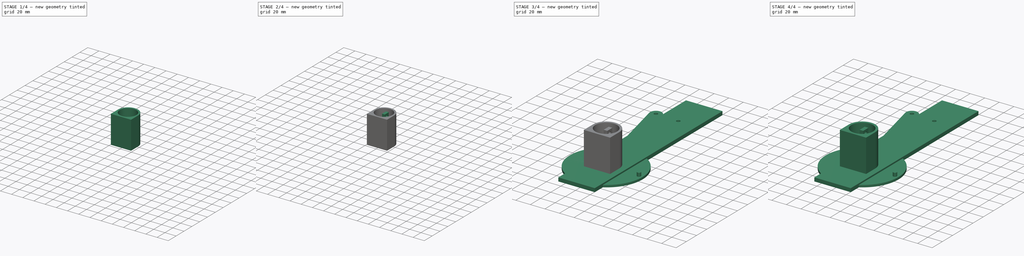
[diagram: build sequence overview — one tinted view per stage of 4, left to right]
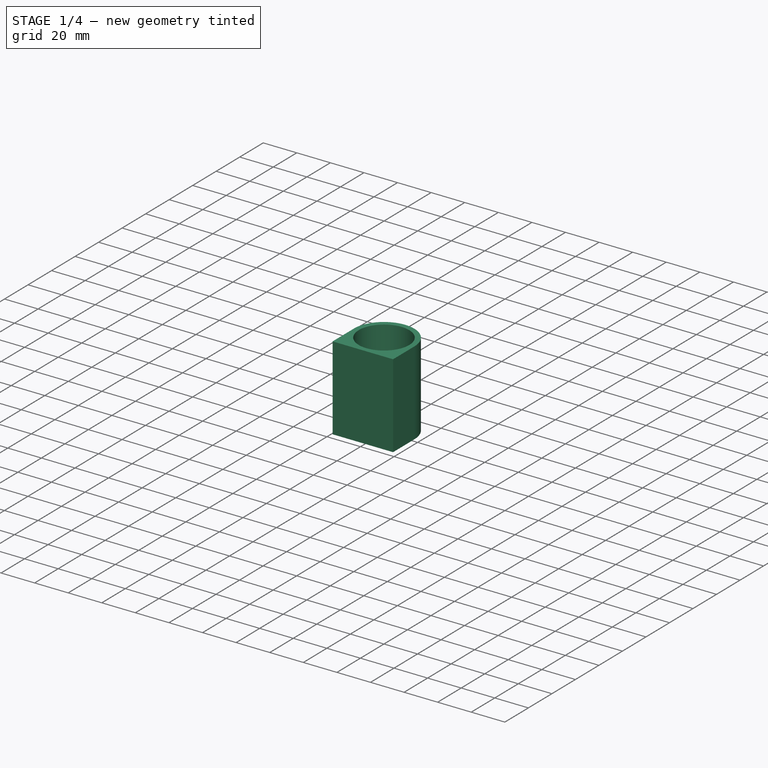
[diagram: stage 1 of 4 — iso view after this stage's code; geometry added in this stage tinted green]
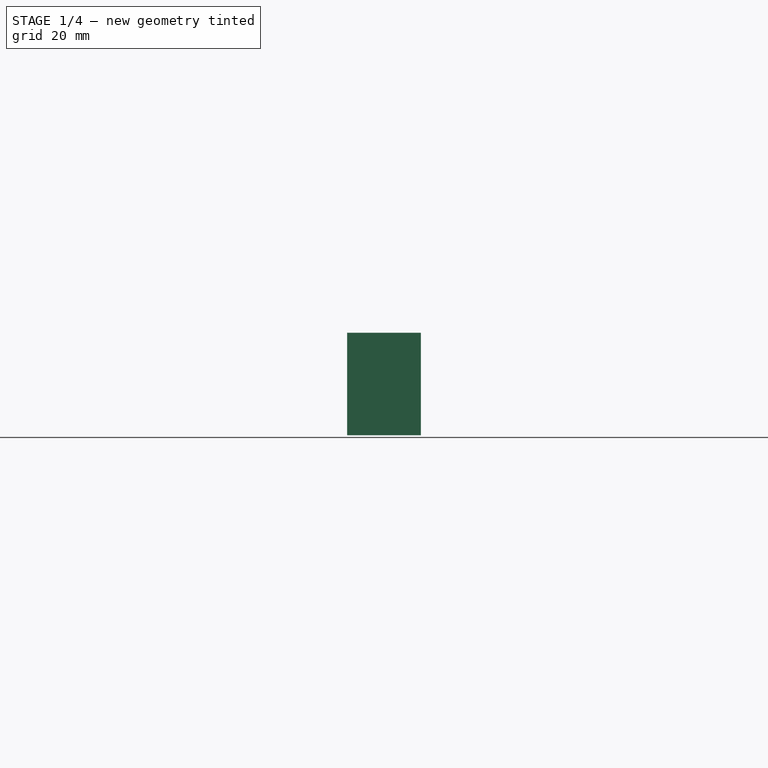
[diagram: stage 1 of 4 — front view after this stage's code; geometry added in this stage tinted green]
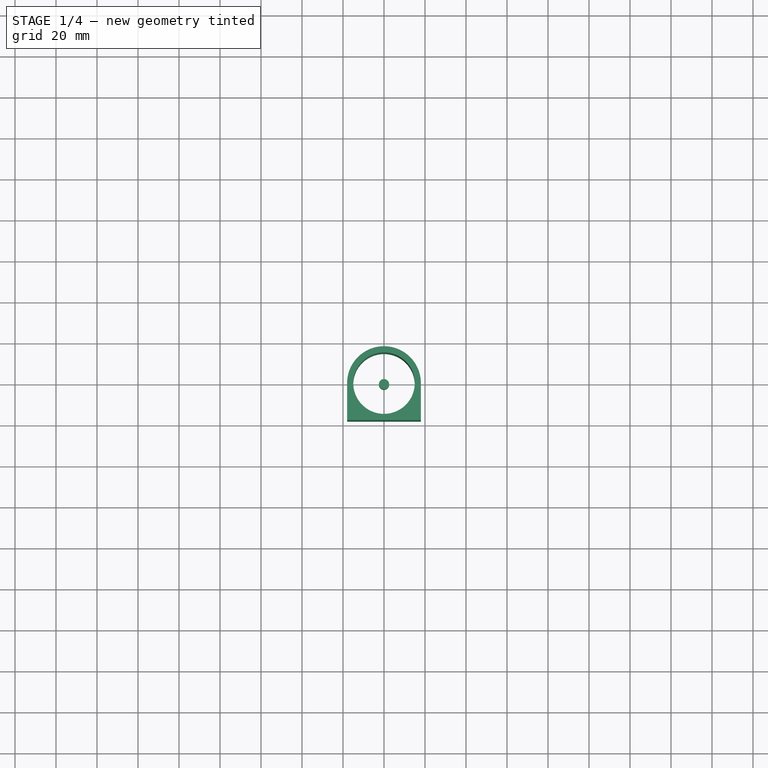
[diagram: stage 1 of 4 — top view after this stage's code; geometry added in this stage tinted green]
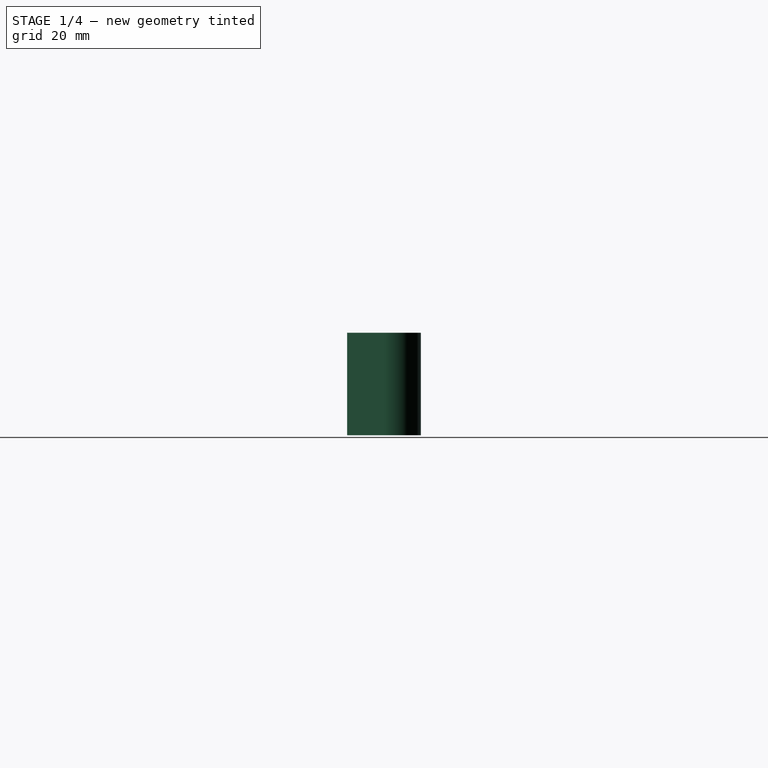
[diagram: stage 1 of 4 — right view after this stage's code; geometry added in this stage tinted green]
FCSTD DOCUMENT  (FreeCAD 0.19R24276 (Git))
Label: Ass_12
License: All rights reserved
LicenseURL: http://en.wikipedia.org/wiki/All_rights_reserved
objects: PartDesign::CoordinateSystem×15, Sketcher::SketchObject×14, PartDesign::Pad×12, PartDesign::Body×9, App::Link×7, App::DocumentObjectGroup×3, App::FeaturePython×1, PartDesign::Pocket×1, App::Part×1
note: 64 computed .brp shape members not serialized (recipe doc carries the construction recipe); baked Part::Feature solids carry a one-line shape summary decoded from their .brp

FEATURE [PartDesign::CoordinateSystem] LCS_Piston_1
  AttacherType = Attacher::AttachEngine3D
  MapMode = 11
  Placement = pos=(0,0,45) rot=(0.707107,0,0.707107;3.14159rad)
  Support = -> [Pocket]
FEATURE [PartDesign::Body] Body002  label="Body_piston"
  Group = -> [Sketch003,Pad003,Sketch004,Pad004,Sketch005,Pocket,LCS_Piston_1]
  Origin = -> Origin003
  Tip = -> Pocket
FEATURE [Sketcher::SketchObject] Sketch006
  FullyConstrained = true
  MapMode = 5
  Support = -> [XY_Plane004]
  sketch-geometry (1):
    g0: Circle CenterX=0 CenterY=0 CenterZ=0 NormalX=0 NormalY=0 NormalZ=1 AngleXU=0 Radius=2.5
  constraints (2):
    c: Coincident(g0,g-1)
    c: Diameter(g0) = 5
FEATURE [PartDesign::Pad] Pad005
  Direction = (1,1,1)
  Length = 10
  Length2 = 100
  Profile = -> Sketch006
  Type = 0
FEATURE [PartDesign::CoordinateSystem] LCS_Shtift_5x10_Center
  AttacherType = Attacher::AttachEngine3D
  MapMode = 11
  Placement = pos=(0,0,10) rot=(0,0,1;1.5708rad)
  Support = -> [Pad007]
FEATURE [PartDesign::Body] Body005  label="Body_Shtift_5x10"
  Group = -> [Sketch008,Pad007,LCS_Shtift_5x10_Center]
  Origin = -> Origin006
  Tip = -> Pad007
FEATURE [Sketcher::SketchObject] Sketch009
  FullyConstrained = false
  MapMode = 5
  Support = -> [XY_Plane007]
  sketch-geometry (5):
    g0: ArcOfCircle CenterX=0 CenterY=0 CenterZ=0 NormalX=0 NormalY=0 NormalZ=1 AngleXU=0 Radius=18 StartAngle=0 EndAngle=3.14159
    g1: Circle CenterX=0 CenterY=0 CenterZ=0 NormalX=0 NormalY=0 NormalZ=1 AngleXU=0 Radius=15
    g2: LineSegment StartX=18 StartY=0 StartZ=0 EndX=18 EndY=-18 EndZ=0
    g3: LineSegment StartX=18 StartY=-18 StartZ=0 EndX=-18 EndY=-18 EndZ=0
    g4: LineSegment StartX=-18 StartY=-18 StartZ=0 EndX=-18 EndY=0 EndZ=0
  constraints (9):
    c: Coincident(g0,g-1)
    c: Coincident(g1,g0)
    c: Diameter(g1) = 30
    c: Diameter(g0) = 36
    c: Coincident(g2,g3)
    c: Coincident(g3,g4)
    c: Horizontal(g3)
    c: Vertical(g2)
    c: Vertical(g4)
FEATURE [PartDesign::Pad] Pad008
  Direction = (1,1,1)
  Length = 50
  Length2 = 100
  Profile = -> Sketch009
  Type = 0
FEATURE [PartDesign::CoordinateSystem] LCS_osnov_W
  AttacherType = Attacher::AttachEngine3D
  MapMode = 11
  Placement = pos=(0,141.24,5) rot=(0,0,1;1.5708rad)
  Support = -> [Pad009]
FEATURE [PartDesign::Body] Body007  label="Body_osnovanie"
  Group = -> [Sketch010,Pad009,LCS_osnov_W]
  Origin = -> Origin008
  Tip = -> Pad009
FEATURE [App::Link] Body_osnovanie  label="Body_osnovanie001"
  AttachedBy = #LCS_osnov_W
  AttachedTo = Parent Assembly#LCS_Origin
  AttachmentOffset = pos=(0,0,-15) rot=(0,0,1;0rad)
  LinkPlacement = pos=(-141.24,0,-20) rot=(0,0,-1;1.5708rad)
  LinkedObject = -> Body007
  Placement = pos=(-141.24,0,-20) rot=(0,0,-1;1.5708rad)
  SolverId = Placement::ExpressionEngine
  expr: Placement = LCS_Origin.Placement * AttachmentOffset * LCS_osnov_W.Placement ^ -1
FEATURE [Sketcher::SketchObject] Sketch011
  FullyConstrained = true
  MapMode = 5
  Support = -> [XY_Plane009]
  sketch-geometry (1):
    g0: Circle CenterX=0 CenterY=0 CenterZ=0 NormalX=0 NormalY=0 NormalZ=1 AngleXU=0 Radius=2.5
  constraints (2):
    c: Coincident(g0,g-1)
    c: Diameter(g0) = 5
FEATURE [PartDesign::Pad] Pad010
  Direction = (1,1,1)
  Length = 20
  Length2 = 100
  Profile = -> Sketch011
  Type = 0
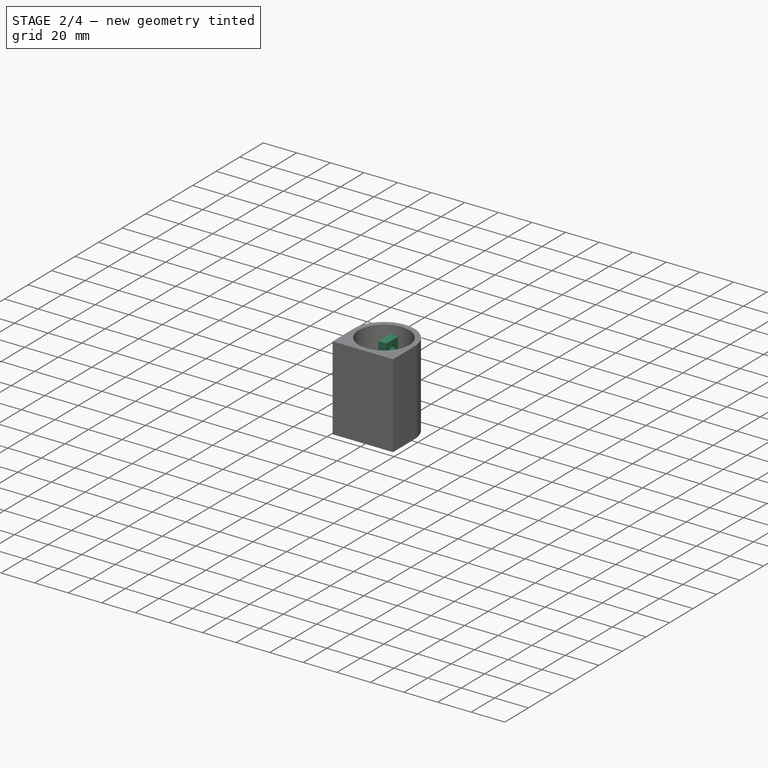
[diagram: stage 2 of 4 — iso view after this stage's code; geometry added in this stage tinted green]
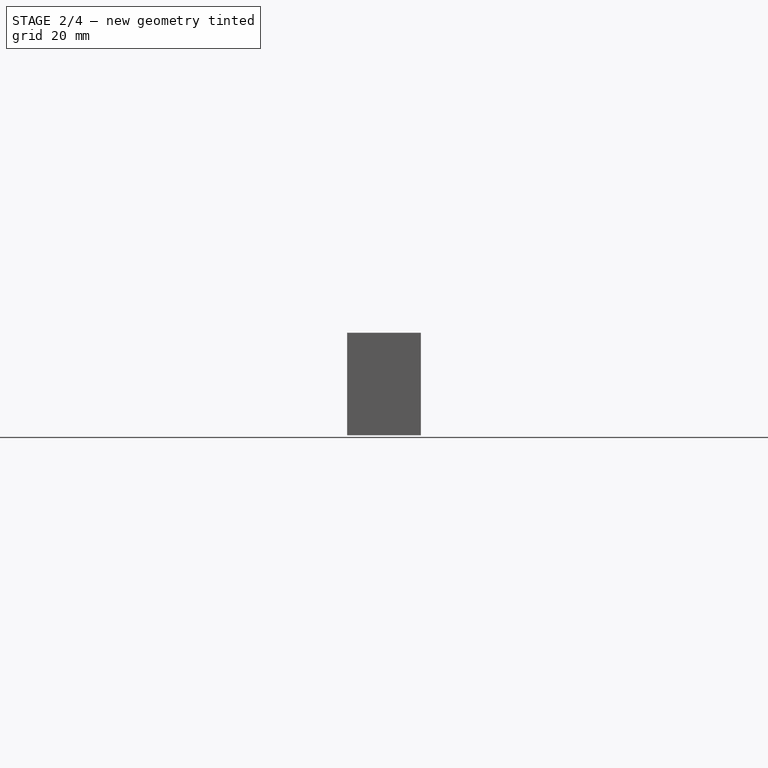
[diagram: stage 2 of 4 — front view after this stage's code; geometry added in this stage tinted green]
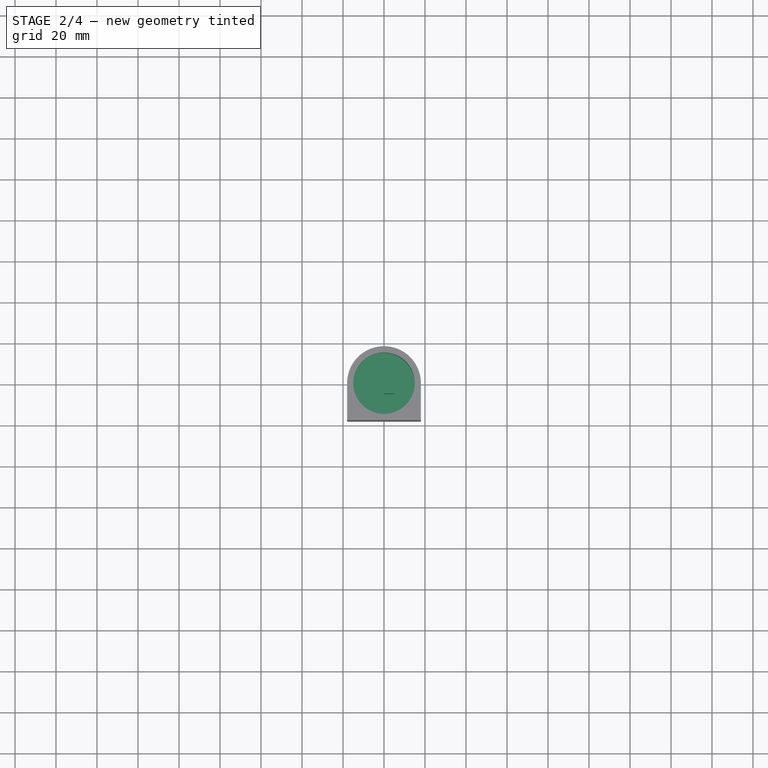
[diagram: stage 2 of 4 — top view after this stage's code; geometry added in this stage tinted green]
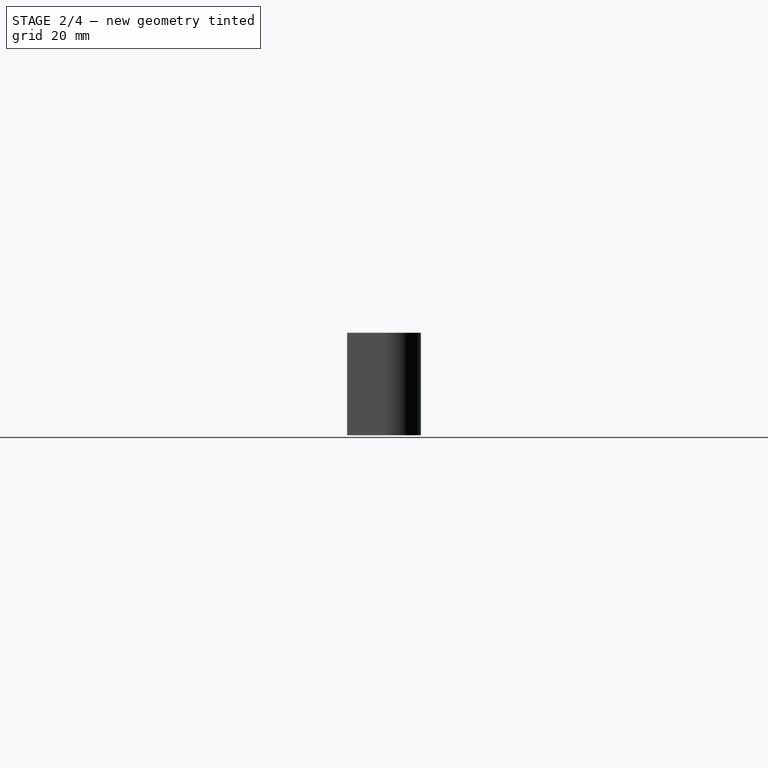
[diagram: stage 2 of 4 — right view after this stage's code; geometry added in this stage tinted green]
FEATURE [Sketcher::SketchObject] Master_Sketch
  FullyConstrained = true
  expr: Constraints[9] = Variables.rot - 90
  sketch-geometry (5):
    g0: Circle CenterX=-106.08 CenterY=0 CenterZ=0 NormalX=0 NormalY=0 NormalZ=1 AngleXU=0 Radius=1
    g1: LineSegment StartX=0 StartY=0 StartZ=0 EndX=43.4667 EndY=-11.6469 EndZ=0
    g2: LineSegment StartX=43.4667 StartY=-11.6469 StartZ=0 EndX=-106.08 EndY=0 EndZ=0
    g3: Circle CenterX=43.4667 CenterY=-11.6469 CenterZ=0 NormalX=0 NormalY=0 NormalZ=1 AngleXU=0 Radius=1
    g4: LineSegment StartX=-106.08 StartY=0 StartZ=0 EndX=-151.08 EndY=0 EndZ=0
  constraints (13):
    c: PointOnObject(g0,g-1)
    c: Diameter(g0) = 2
    c: Coincident(g1,g-1)
    c: Coincident(g2,g1)
    c: Coincident(g2,g0)
    c: Distance(g1) = 45
    c: Distance(g2) = 150
    c: Coincident(g3,g1)
    c: Diameter(g3) = 2
    c: Angle(g-1,g1) = -0.261799
    c: Coincident(g4,g0)
    c: Horizontal(g4)
    c: DistanceX(g4,g0) = 45
FEATURE [App::DocumentObjectGroup] Constraints
  Group = -> [Master_Sketch]
FEATURE [PartDesign::CoordinateSystem] LCS_Blin_Center
  AttacherType = Attacher::AttachEngine3D
  MapMode = 11
  Placement = pos=(0,0,3) rot=(0,0,1;1.5708rad)
  Support = -> [Pad001]
FEATURE [PartDesign::Body] Body  label="Body_blin_2"
  Group = -> [Sketch,Pad,Sketch001,Pad001,LCS_Blin_Center]
  Origin = -> Origin001
  Tip = -> Pad001
FEATURE [Sketcher::SketchObject] Sketch003
  FullyConstrained = true
  MapMode = 5
  Support = -> [XY_Plane003]
  sketch-geometry (1):
    g0: Circle CenterX=0 CenterY=0 CenterZ=0 NormalX=0 NormalY=0 NormalZ=1 AngleXU=0 Radius=15
  constraints (2):
    c: Coincident(g0,g-1)
    c: Diameter(g0) = 30
FEATURE [PartDesign::Pad] Pad003
  Direction = (1,1,1)
  Length = 30
  Length2 = 100
  Profile = -> Sketch003
  Type = 0
FEATURE [Sketcher::SketchObject] Sketch004
  FullyConstrained = true
  MapMode = 5
  Placement = pos=(0,0,30) rot=(0,0,1;0rad)
  Support = -> [Pad003]
  sketch-geometry (4):
    g0: LineSegment StartX=0 StartY=5 StartZ=0 EndX=5 EndY=5 EndZ=0
    g1: LineSegment StartX=5 StartY=5 StartZ=0 EndX=5 EndY=-5 EndZ=0
    g2: LineSegment StartX=5 StartY=-5 StartZ=0 EndX=0 EndY=-5 EndZ=0
    g3: LineSegment StartX=0 StartY=-5 StartZ=0 EndX=0 EndY=5 EndZ=0
  constraints (11):
    c: Coincident(g0,g1)
    c: Coincident(g1,g2)
    c: Coincident(g2,g3)
    c: Coincident(g3,g0)
    c: Horizontal(g0)
    c: Horizontal(g2)
    c: Vertical(g1)
    c: Vertical(g3)
    c: Symmetric(g2,g0,g-1)
    c: DistanceX(g0,g0) = 5
    c: DistanceY(g1,g1) = 10
FEATURE [PartDesign::Pad] Pad004
  BaseFeature = -> Pad003
  Direction = (1,1,1)
  Length = 20
  Length2 = 100
  Profile = -> Sketch004
  Type = 0
FEATURE [Sketcher::SketchObject] Sketch005
  FullyConstrained = true
  MapMode = 5
  Placement = pos=(5,0,0) rot=(0.57735,0.57735,0.57735;2.0944rad)
  Support = -> [Pad004]
  sketch-geometry (1):
    g0: Circle CenterX=0 CenterY=45 CenterZ=0 NormalX=0 NormalY=0 NormalZ=1 AngleXU=0 Radius=2.5
  constraints (3):
    c: PointOnObject(g0,g-2)
    c: Diameter(g0) = 5
    c: DistanceY(g-1,g0) = 45
FEATURE [PartDesign::Pocket] Pocket
  BaseFeature = -> Pad004
  Length = 5
  Length2 = 100
  Profile = -> Sketch005
  Type = 1
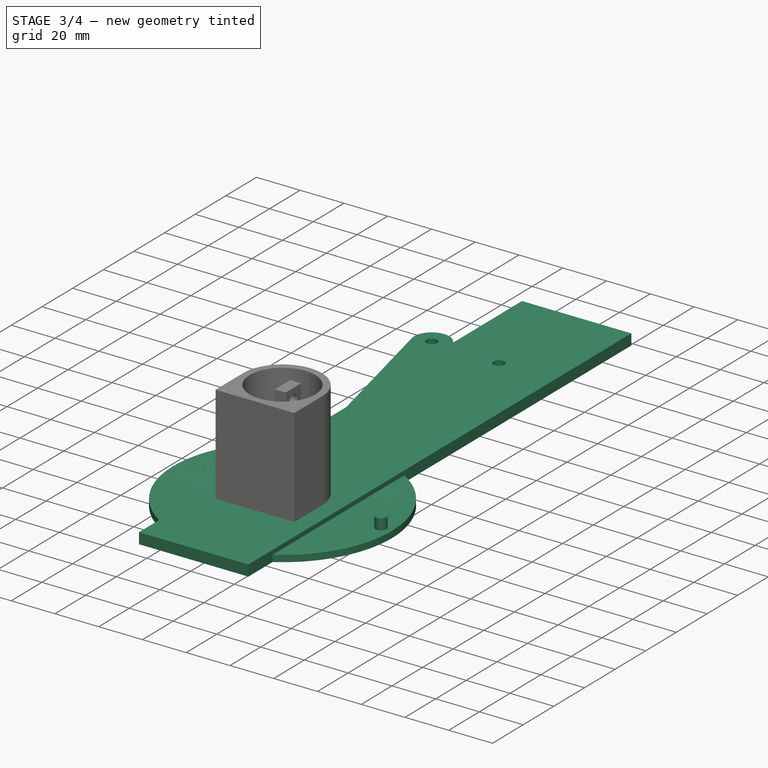
[diagram: stage 3 of 4 — iso view after this stage's code; geometry added in this stage tinted green]
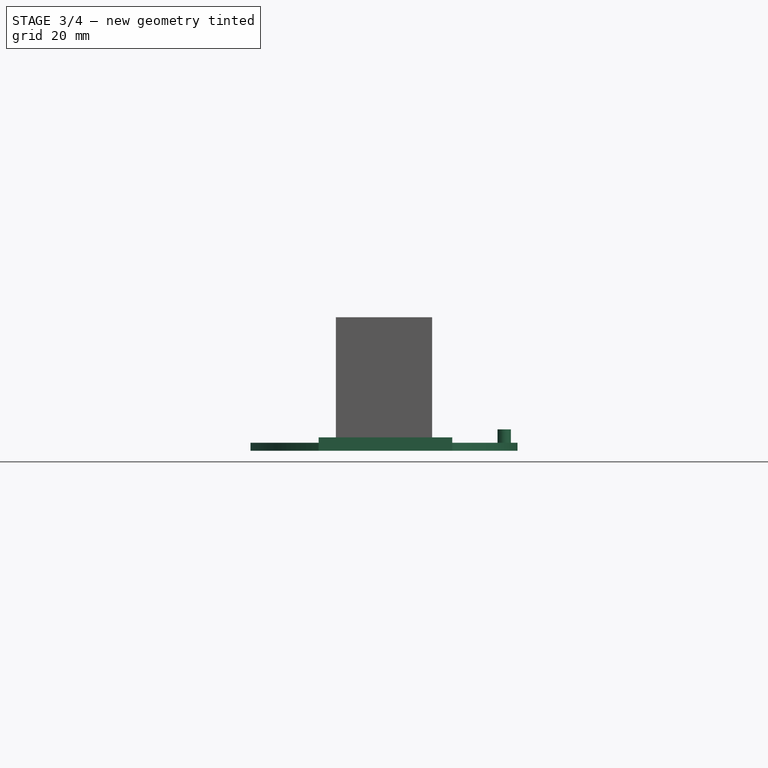
[diagram: stage 3 of 4 — front view after this stage's code; geometry added in this stage tinted green]
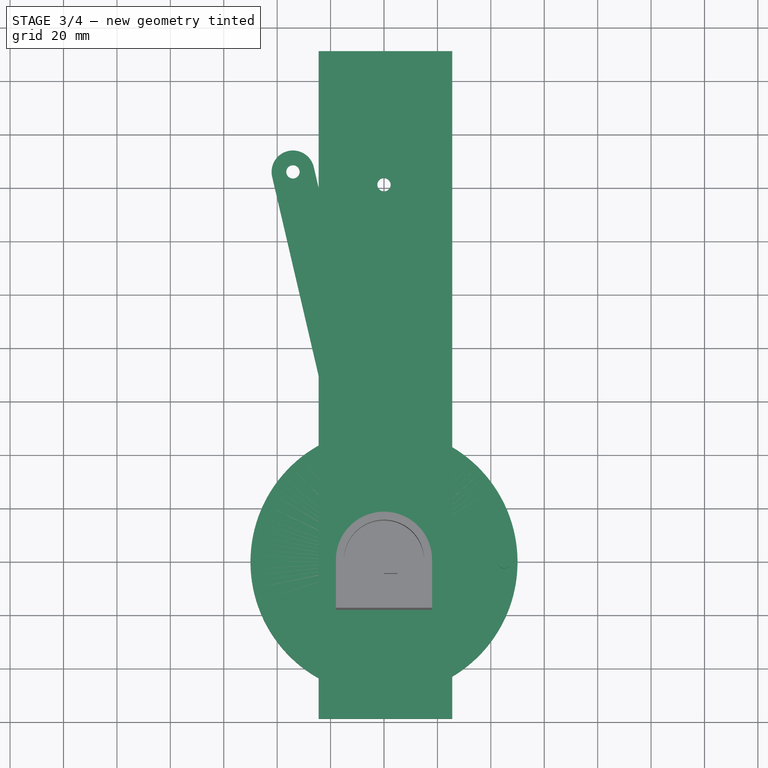
[diagram: stage 3 of 4 — top view after this stage's code; geometry added in this stage tinted green]
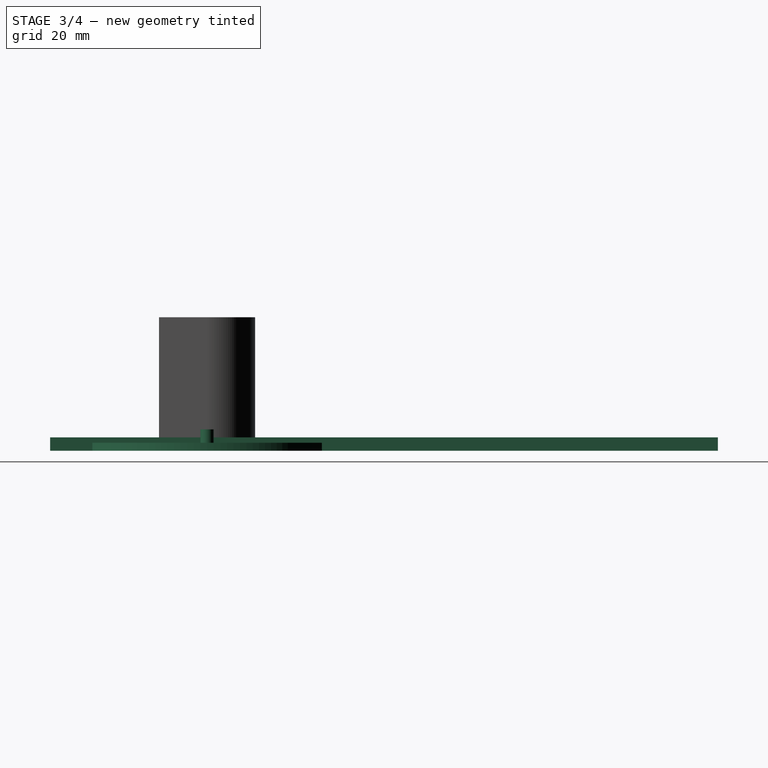
[diagram: stage 3 of 4 — right view after this stage's code; geometry added in this stage tinted green]
FEATURE [PartDesign::CoordinateSystem] LCS_Cilinder_center
  AttacherType = Attacher::AttachEngine3D
  MapMode = 11
  Placement = pos=(0,0,50) rot=(0,0,1;1.5708rad)
  Support = -> [Pad008]
FEATURE [PartDesign::Body] Body006  label="Body_cilinder_Sq"
  Group = -> [Sketch009,Pad008,LCS_Cilinder_center]
  Origin = -> Origin007
  Tip = -> Pad008
FEATURE [Sketcher::SketchObject] Sketch010
  FullyConstrained = false
  MapMode = 5
  Support = -> [XY_Plane008]
  sketch-geometry (5):
    g0: LineSegment StartX=25.5407 StartY=-58.7601 StartZ=0 EndX=-24.4593 EndY=-58.7601 EndZ=0
    g1: LineSegment StartX=-24.4593 StartY=-58.7601 StartZ=0 EndX=-24.4593 EndY=191.24 EndZ=0
    g2: LineSegment StartX=-24.4593 StartY=191.24 StartZ=0 EndX=25.5407 EndY=191.24 EndZ=0
    g3: LineSegment StartX=25.5407 StartY=191.24 StartZ=0 EndX=25.5407 EndY=-58.7601 EndZ=0
    g4: Circle CenterX=0 CenterY=141.24 CenterZ=0 NormalX=0 NormalY=0 NormalZ=1 AngleXU=0 Radius=2.5
  constraints (13):
    c: Coincident(g0,g1)
    c: Coincident(g1,g2)
    c: Coincident(g2,g3)
    c: Coincident(g3,g0)
    c: Horizontal(g0)
    c: Horizontal(g2)
    c: Vertical(g1)
    c: Vertical(g3)
    c: DistanceY(g3,g3) = 250
    c: DistanceX(g2,g2) = 50
    c: PointOnObject(g4,g-2)
    c: Diameter(g4) = 5
    c: DistanceY(g0,g4) = 200
FEATURE [PartDesign::Pad] Pad009
  Direction = (1,1,1)
  Length = 5
  Length2 = 100
  Profile = -> Sketch010
  Type = 0
FEATURE [PartDesign::CoordinateSystem] LCS_Shtift_W_Center
  AttacherType = Attacher::AttachEngine3D
  MapMode = 11
  Placement = pos=(0,0,20) rot=(0,0,1;1.5708rad)
  Support = -> [Pad010]
FEATURE [Sketcher::SketchObject] Sketch012
  FullyConstrained = true
  MapMode = 5
  Support = -> [XY_Plane010]
  sketch-geometry (2):
    g0: Circle CenterX=0 CenterY=0 CenterZ=0 NormalX=0 NormalY=0 NormalZ=1 AngleXU=0 Radius=50
    g1: Circle CenterX=0 CenterY=0 CenterZ=0 NormalX=0 NormalY=0 NormalZ=1 AngleXU=0 Radius=2.5
  constraints (4):
    c: Coincident(g0,g-1)
    c: Diameter(g0) = 100
    c: Coincident(g1,g0)
    c: Diameter(g1) = 5
FEATURE [PartDesign::Pad] Pad011
  Direction = (1,1,1)
  Length = 3
  Length2 = 100
  Profile = -> Sketch012
  Type = 0
FEATURE [Sketcher::SketchObject] Sketch013
  FullyConstrained = true
  MapMode = 5
  Placement = pos=(0,0,3) rot=(0,0,1;0rad)
  Support = -> [Pad011]
  sketch-geometry (1):
    g0: Circle CenterX=45 CenterY=0 CenterZ=0 NormalX=0 NormalY=0 NormalZ=1 AngleXU=0 Radius=2.5
  constraints (3):
    c: PointOnObject(g0,g-1)
    c: Distance(g-1,g0) = 45
    c: Diameter(g0) = 5
FEATURE [PartDesign::Pad] Pad012
  BaseFeature = -> Pad011
  Direction = (1,1,1)
  Length = 5
  Length2 = 100
  Profile = -> Sketch013
  Type = 0
FEATURE [PartDesign::CoordinateSystem] LCS_Blin_Center001
  AttacherType = Attacher::AttachEngine3D
  MapMode = 11
  Placement = pos=(0,0,3) rot=(0,0,1;1.5708rad)
  Support = -> [Pad012]
FEATURE [PartDesign::CoordinateSystem] LCS_Blin_Rad
  AttacherType = Attacher::AttachEngine3D
  MapMode = 11
  Placement = pos=(45,0,3) rot=(0,0,1;1.5708rad)
  Support = -> [Pad012]
FEATURE [PartDesign::Body] Body009  label="Body_blin_003"
  Group = -> [Sketch012,Pad011,Sketch013,Pad012,LCS_Blin_Center001,LCS_Blin_Rad]
  Origin = -> Origin010
  Tip = -> Pad012
FEATURE [App::Link] Body_blin_003  label="Body_blin_004"
  AttachedBy = #LCS_Blin_Center001
  AttachedTo = Body_osnovanie#LCS_osnov_W
  AttachmentOffset = pos=(0,0,15) rot=(0,0,1;1.309rad)
  LinkPlacement = pos=(2.84e-14,0,-3) rot=(0,0,-1;0.261799rad)
  LinkedObject = -> Body009
  Placement = pos=(2.84e-14,0,-3) rot=(0,0,-1;0.261799rad)
  SolverId = Placement::ExpressionEngine
  expr: .AttachmentOffset.Rotation.Angle = Variables.rot
  expr: Placement = Body_osnovanie.Placement * LCS_osnov_W.Placement * AttachmentOffset * LCS_Blin_Center001.Placement ^ -1
FEATURE [Sketcher::SketchObject] Sketch014
  FullyConstrained = false
  MapMode = 5
  Support = -> [XY_Plane011]
  sketch-geometry (6):
    g0: ArcOfCircle CenterX=0 CenterY=0 CenterZ=0 NormalX=0 NormalY=0 NormalZ=1 AngleXU=0 Radius=8 StartAngle=3.37087 EndAngle=6.51246
    g1: ArcOfCircle CenterX=-34.091 CenterY=146.075 CenterZ=0 NormalX=0 NormalY=0 NormalZ=1 AngleXU=0 Radius=8 StartAngle=0.229277 EndAngle=3.37087
    g2: LineSegment StartX=7.79065 StartY=1.81819 StartZ=0 EndX=-26.3003 EndY=147.893 EndZ=0
    g3: LineSegment StartX=-7.79065 StartY=-1.81819 StartZ=0 EndX=-41.8816 EndY=144.256 EndZ=0
    g4: Circle CenterX=0 CenterY=0 CenterZ=0 NormalX=0 NormalY=0 NormalZ=1 AngleXU=0 Radius=2.5
    g5: Circle CenterX=-34.091 CenterY=146.075 CenterZ=0 NormalX=0 NormalY=0 NormalZ=1 AngleXU=0 Radius=2.5
  constraints (12):
    c: Tangent(g0,g3) = 1.5708
    c: Tangent(g0,g2) = -1.5708
    c: Tangent(g2,g1) = -1.5708
    c: Tangent(g3,g1) = 1.5708
    c: Equal(g0,g1)
    c: Coincident(g4,g0)
    c: Coincident(g5,g1)
    c: Equal(g4,g5)
    c: Diameter(g5) = 5
    c: Radius(g0) = 8
    c: Coincident(g0,g-1)
    c: Distance(g1,g0) = 150
FEATURE [PartDesign::Pad] Pad013
  Direction = (1,1,1)
  Length = 3
  Length2 = 100
  Profile = -> Sketch014
  Type = 0
FEATURE [PartDesign::CoordinateSystem] LCS_MS_P
  AttacherType = Attacher::AttachEngine3D
  MapMode = 11
  Placement = pos=(-106.08,0,0) rot=(0,0,1;1.5708rad)
  Support = -> [Master_Sketch]
FEATURE [PartDesign::CoordinateSystem] LCS_SH_W001  label="LCS_SH_W"
  AttacherType = Attacher::AttachEngine3D
  MapMode = 11
  Placement = pos=(-34.091,146.075,3) rot=(0,0,1;1.5708rad)
  Support = -> [Pad013]
FEATURE [PartDesign::CoordinateSystem] LCS_SH_P
  AttacherType = Attacher::AttachEngine3D
  MapMode = 11
  Placement = pos=(0,0,3) rot=(0,0,1;1.5708rad)
  Support = -> [Pad013]
FEATURE [PartDesign::Body] Body010  label="Body_Shatun"
  Group = -> [Sketch014,Pad013,LCS_SH_W001,LCS_SH_P]
  Origin = -> Origin011
  Tip = -> Pad013
FEATURE [PartDesign::CoordinateSystem] LCS_MS_W_Rad
  AttacherType = Attacher::AttachEngine3D
  MapMode = 49
  Placement = pos=(43.4667,-11.6469,0) rot=(0,0,1;3.06387rad)
  Support = -> [Master_Sketch]
FEATURE [App::Link] Body_Shatun  label="Body_Shatun001"
  AttachedBy = #LCS_SH_W001
  AttachedTo = Parent Assembly#LCS_MS_W_Rad
  AttachmentOffset = pos=(0,0,3) rot=(0,0,1;2.91296rad)
  LinkPlacement = pos=(-106.088,-0.0954972,-4e-16) rot=(0,0,1;4.40603rad)
  LinkedObject = -> Body010
  Placement = pos=(-106.088,-0.0954972,-4e-16) rot=(0,0,1;4.40603rad)
  SolverId = Placement::ExpressionEngine
  expr: Placement = LCS_MS_W_Rad.Placement * AttachmentOffset * LCS_SH_W001.Placement ^ -1
FEATURE [App::Link] Body_piston  label="Body_piston001"
  AttachedBy = #LCS_Piston_1
  AttachedTo = Parent Assembly#LCS_MS_P
  AttachmentOffset = pos=(0,0,3) rot=(0,0,1;4.71239rad)
  LinkPlacement = pos=(-151.08,1.8e-14,3) rot=(0.707107,0,0.707107;3.14159rad)
  LinkedObject = -> Body002
  Placement = pos=(-151.08,1.8e-14,3) rot=(0.707107,0,0.707107;3.14159rad)
  SolverId = Placement::ExpressionEngine
  expr: Placement = LCS_MS_P.Placement * AttachmentOffset * LCS_Piston_1.Placement ^ -1
FEATURE [App::Link] Body_cilinder_Sq  label="Body_cilinder_Sq001"
  AttachedBy = #LCS_Cilinder_center
  AttachedTo = Parent Assembly#LCS_Origin
  AttachmentOffset = pos=(-150,0,3) rot=(0.707107,0,0.707107;3.14159rad)
  LinkPlacement = pos=(-200,0,3) rot=(0.57735,0.57735,0.57735;2.0944rad)
  LinkedObject = -> Body006
  Placement = pos=(-200,0,3) rot=(0.57735,0.57735,0.57735;2.0944rad)
  SolverId = Placement::ExpressionEngine
  expr: Placement = LCS_Origin.Placement * AttachmentOffset * LCS_Cilinder_center.Placement ^ -1
FEATURE [PartDesign::CoordinateSystem] LCS_Shitt_W_center
  AttacherType = Attacher::AttachEngine3D
  MapMode = 11
  Placement = pos=(0,0,0) rot=(0,0,1;1.5708rad)
  Support = -> [Pad010]
FEATURE [PartDesign::Body] Body008  label="Body_Shtift_5x20"
  Group = -> [Sketch011,Pad010,LCS_Shtift_W_Center,LCS_Shitt_W_center]
  Origin = -> Origin009
  Tip = -> Pad010
FEATURE [App::DocumentObjectGroup] Parts
  Group = -> [Body,Body008,Body003,Body005,Body006,Body007,Body009,Body010,Body002]
FEATURE [App::Link] Body_Shtift_5x20  label="Body_Shtift_5x021"
  AttachedBy = #LCS_Shitt_W_center
  AttachedTo = Parent Assembly#LCS_Origin
  AttachmentOffset = pos=(0,0,-20) rot=(0,0,1;0rad)
  LinkPlacement = pos=(0,0,-20) rot=(0,0,-1;1.5708rad)
  LinkedObject = -> Body008
  Placement = pos=(0,0,-20) rot=(0,0,-1;1.5708rad)
  SolverId = Placement::ExpressionEngine
  expr: Placement = LCS_Origin.Placement * AttachmentOffset * LCS_Shitt_W_center.Placement ^ -1
FEATURE [App::Link] Body_Shtift_5x10_  label="Body_Shtift_5x10_001"
  AttachedBy = #LCS_Shtift_center
  AttachedTo = Parent Assembly#LCS_MS_P
  AttachmentOffset = pos=(0,0,9) rot=(0,0,1;0rad)
  LinkPlacement = pos=(-106.08,0,-1) rot=(0,0,1;0rad)
  LinkedObject = -> Body003
  Placement = pos=(-106.08,0,-1) rot=(0,0,1;0rad)
  SolverId = Placement::ExpressionEngine
  expr: Placement = LCS_MS_P.Placement * AttachmentOffset * LCS_Shtift_center.Placement ^ -1
FEATURE [App::Part] Assembly
  AssemblyType = Part::Link
  Group = -> [LCS_Origin,Constraints,Configurations,Master_Sketch,Body_osnovanie,Body_blin_003,LCS_MS_P,LCS_MS_W_Rad,Body_Shatun,Body_piston,Body_cilinder_Sq,Body_Shtift_5x20,Body_Shtift_5x10_]
  Origin = -> Origin
  Type = Assembly
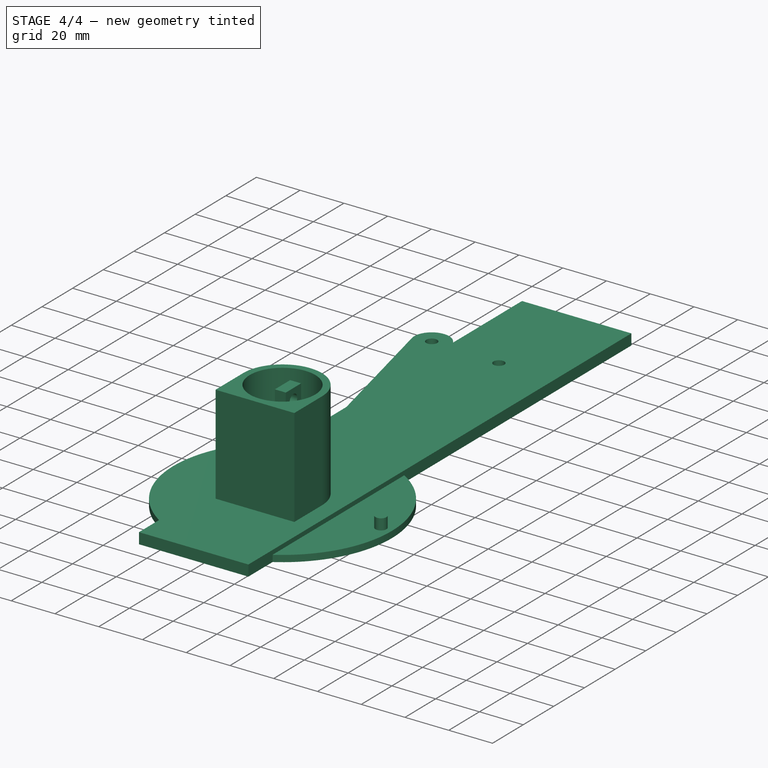
[diagram: stage 4 of 4 — iso view after this stage's code; geometry added in this stage tinted green]
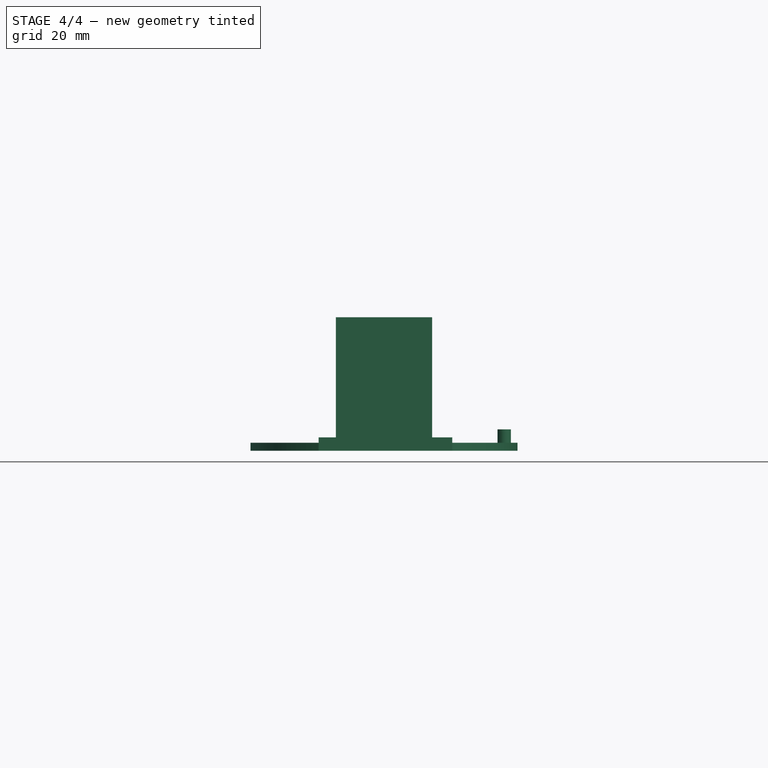
[diagram: stage 4 of 4 — front view after this stage's code; geometry added in this stage tinted green]
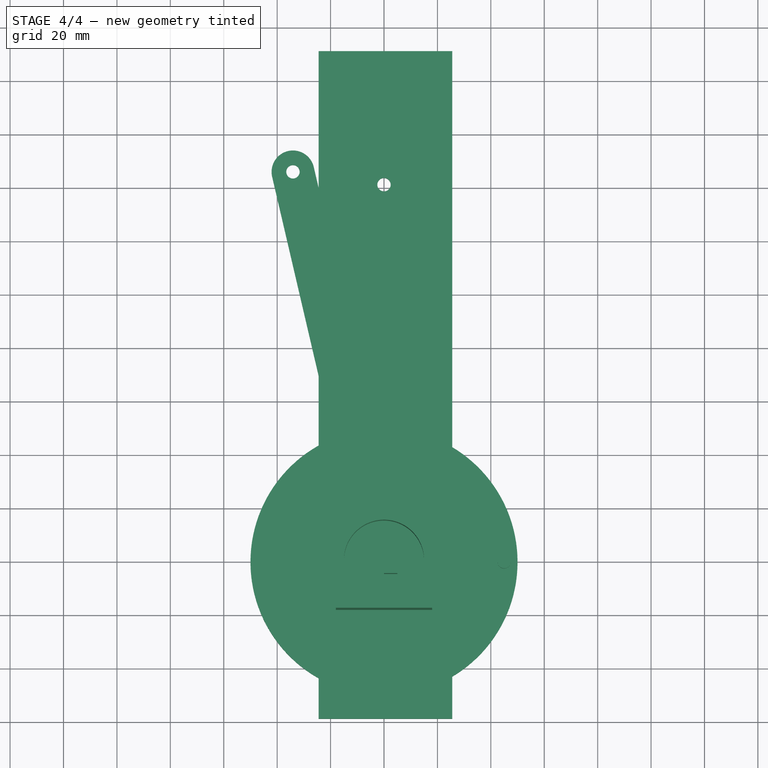
[diagram: stage 4 of 4 — top view after this stage's code; geometry added in this stage tinted green]
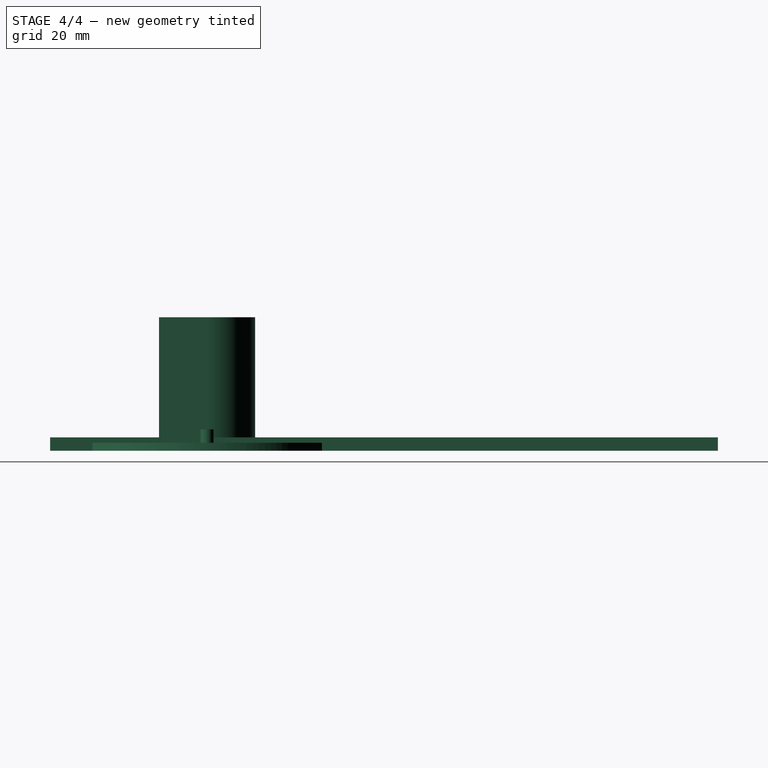
[diagram: stage 4 of 4 — right view after this stage's code; geometry added in this stage tinted green]
FEATURE [PartDesign::CoordinateSystem] LCS_Origin
  AttacherType = Attacher::AttachEngine3D
  MapMode = 2
  Support = -> [X_Axis]
FEATURE [App::FeaturePython] Variables  # WARN: FeaturePython — macro-defined, semantics opaque (R4)
  Type = App::PropertyContainer
  rot = 75
FEATURE [App::DocumentObjectGroup] Configurations
FEATURE [Sketcher::SketchObject] Sketch
  FullyConstrained = true
  MapMode = 5
  Support = -> [XY_Plane001]
  sketch-geometry (2):
    g0: Circle CenterX=0 CenterY=0 CenterZ=0 NormalX=0 NormalY=0 NormalZ=1 AngleXU=0 Radius=50
    g1: Circle CenterX=0 CenterY=0 CenterZ=0 NormalX=0 NormalY=0 NormalZ=1 AngleXU=0 Radius=2.5
  constraints (4):
    c: Coincident(g0,g-1)
    c: Diameter(g0) = 100
    c: Coincident(g1,g0)
    c: Diameter(g1) = 5
FEATURE [PartDesign::Pad] Pad
  Direction = (1,1,1)
  Length = 3
  Length2 = 100
  Profile = -> Sketch
  Type = 0
FEATURE [Sketcher::SketchObject] Sketch001
  FullyConstrained = true
  MapMode = 5
  Placement = pos=(0,0,3) rot=(0,0,1;0rad)
  Support = -> [Pad]
  sketch-geometry (1):
    g0: Circle CenterX=45 CenterY=0 CenterZ=0 NormalX=0 NormalY=0 NormalZ=1 AngleXU=0 Radius=2.5
  constraints (3):
    c: PointOnObject(g0,g-1)
    c: Distance(g-1,g0) = 45
    c: Diameter(g0) = 5
FEATURE [PartDesign::Pad] Pad001
  BaseFeature = -> Pad
  Direction = (1,1,1)
  Length = 5
  Length2 = 100
  Profile = -> Sketch001
  Type = 0
FEATURE [PartDesign::CoordinateSystem] LCS_Shtift_center
  AttacherType = Attacher::AttachEngine3D
  MapMode = 11
  Placement = pos=(0,0,10) rot=(0,0,1;1.5708rad)
  Support = -> [Pad005]
FEATURE [PartDesign::Body] Body003  label="Body_Shtift_5x10_"
  Group = -> [Sketch006,Pad005,LCS_Shtift_center]
  Origin = -> Origin004
  Tip = -> Pad005
FEATURE [Sketcher::SketchObject] Sketch008
  FullyConstrained = true
  MapMode = 5
  Support = -> [XY_Plane006]
  sketch-geometry (1):
    g0: Circle CenterX=0 CenterY=0 CenterZ=0 NormalX=0 NormalY=0 NormalZ=1 AngleXU=0 Radius=2.5
  constraints (2):
    c: Coincident(g0,g-1)
    c: Diameter(g0) = 5
FEATURE [PartDesign::Pad] Pad007
  Direction = (1,1,1)
  Length = 10
  Length2 = 100
  Profile = -> Sketch008
  Type = 0
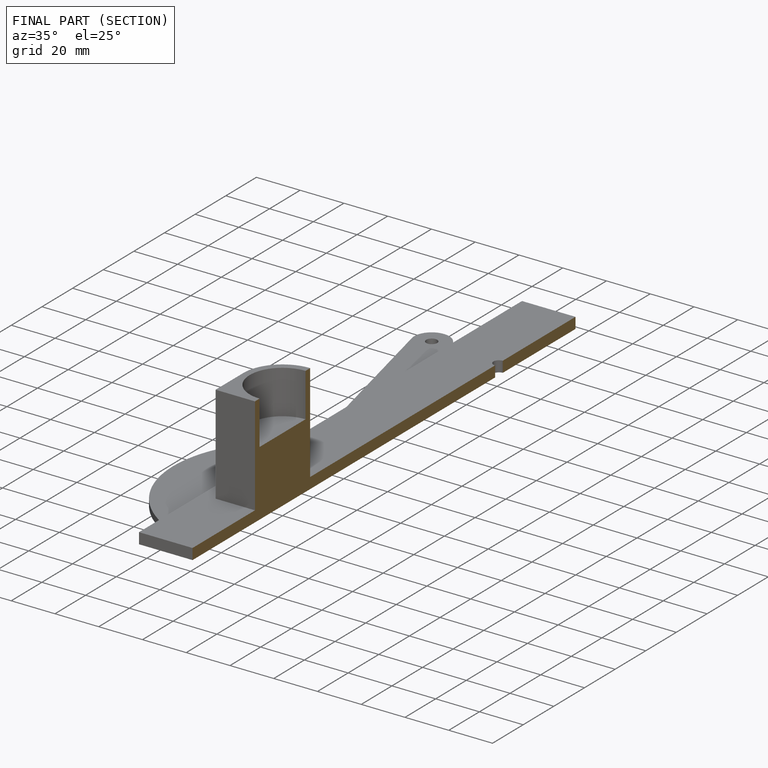
[diagram: finished part — half-section view (interior)]
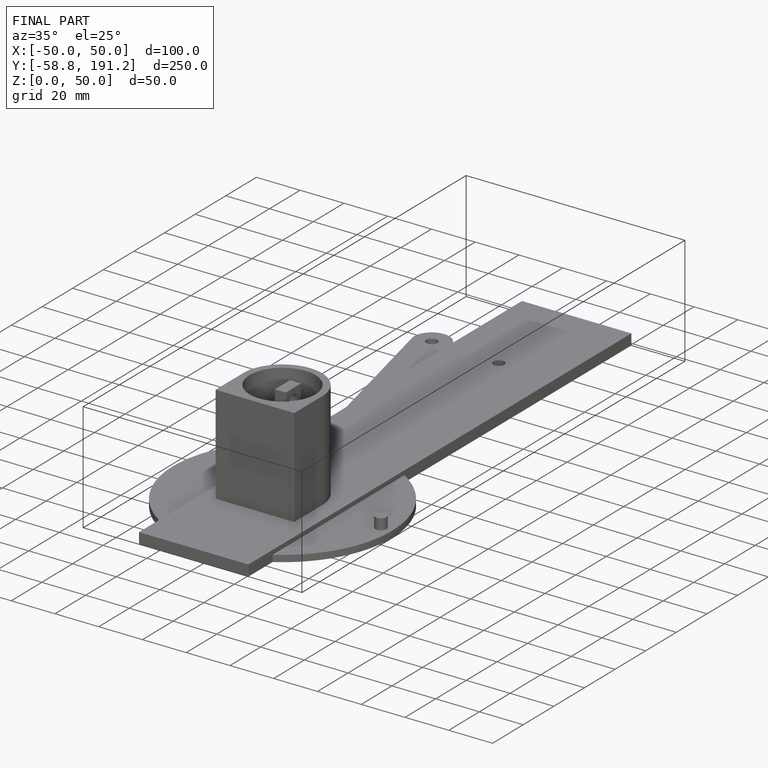
[diagram: finished part — iso view with bounding-box wireframe]
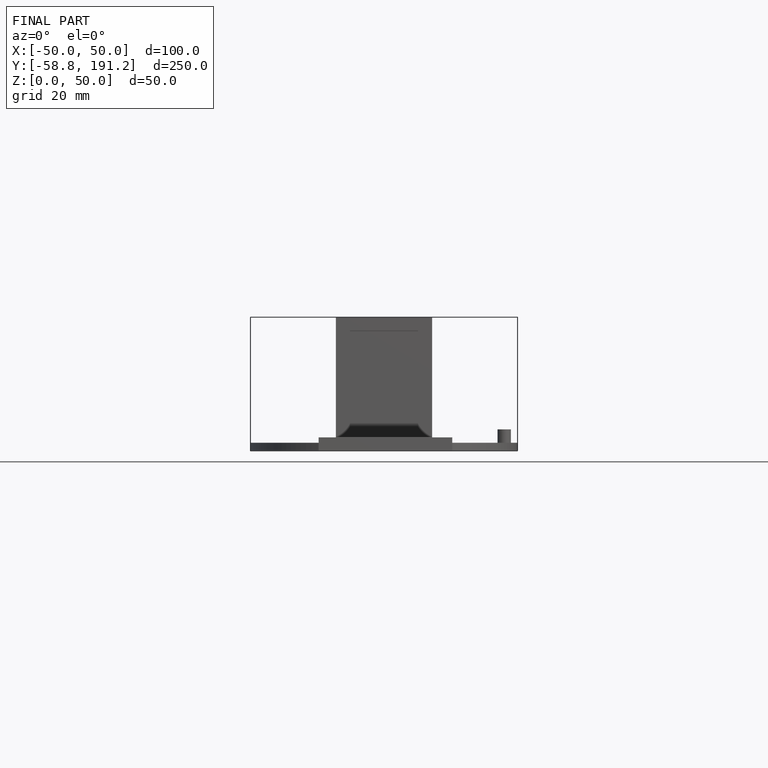
[diagram: finished part — front view with bounding-box wireframe]
